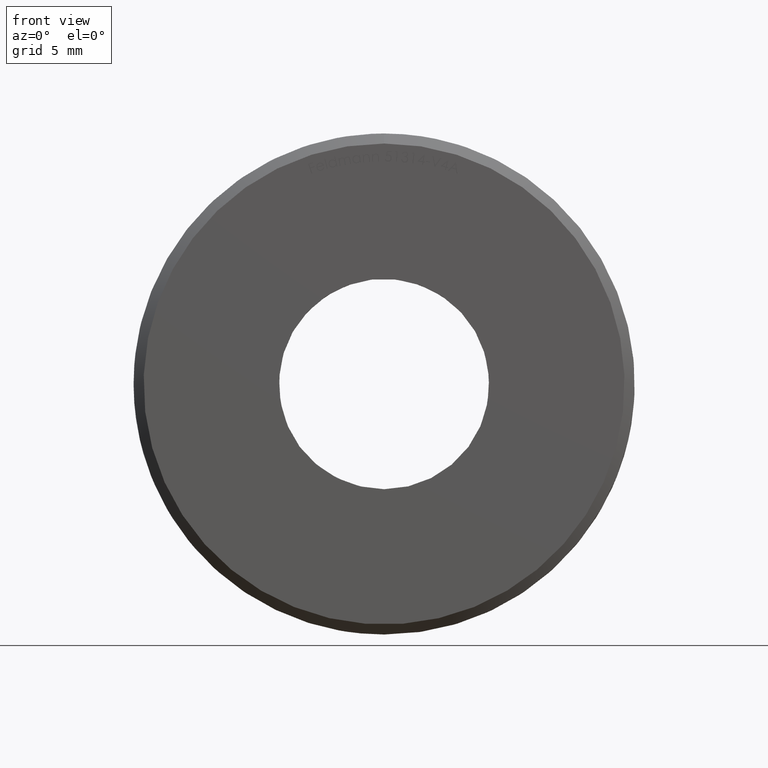
[diagram: clean part render]
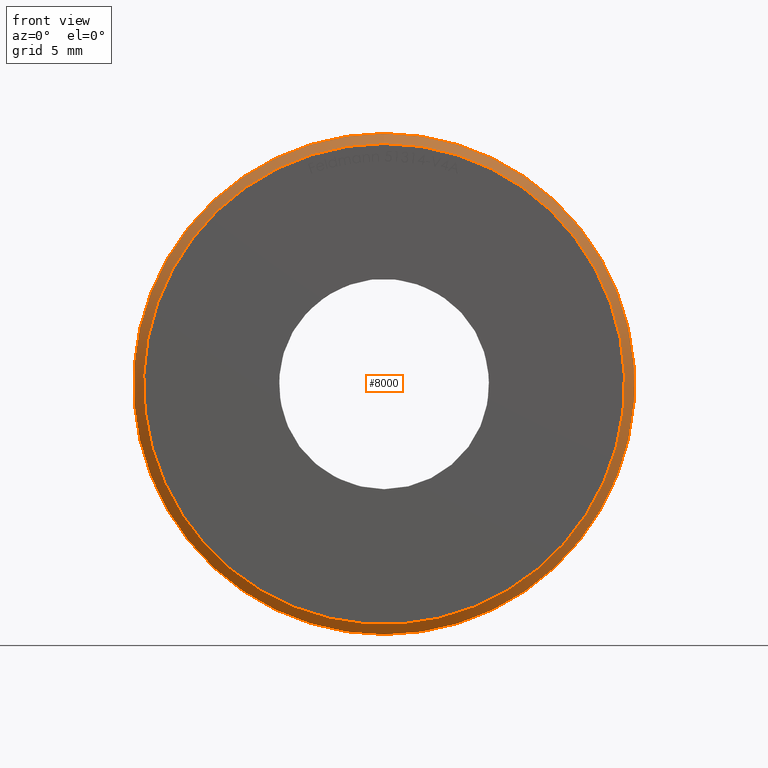
[diagram: same view with one face highlighted and labeled with its STEP entity id]
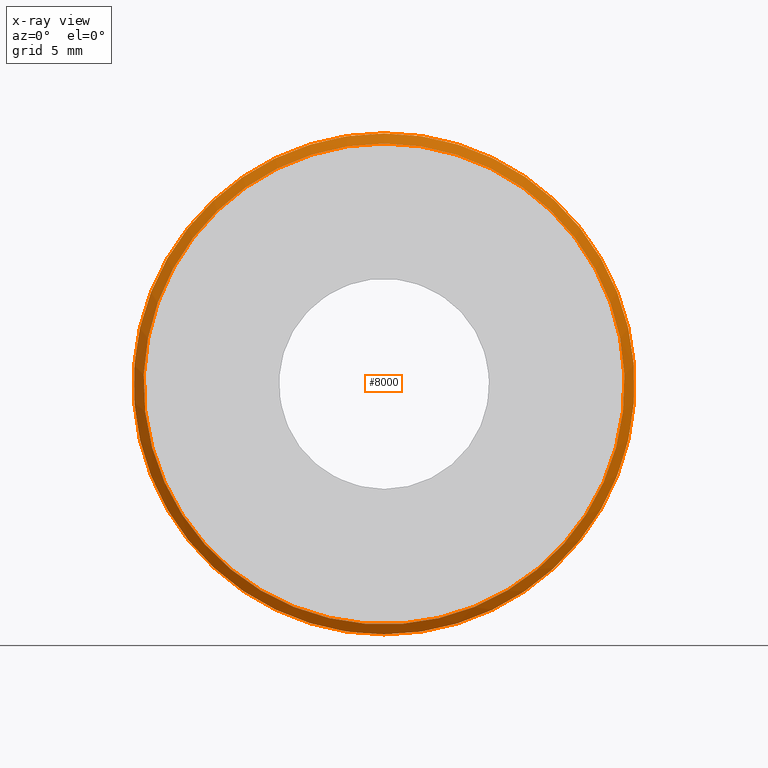
[diagram: x-ray of the same camera — body ghosted, the highlighted face saturated]
A machine part, front view. The second image highlights one B-rep face of the part: STEP entity #8000.
The next image is the same camera in x-ray: the body ghosted, the highlighted face saturated — about 0% of this face is hidden behind the body in this view.
In plain terms, the highlighted conical surface has half-angle 45 deg.
Its self-contained STEP definition (entity closure, byte-faithful):
#161 = EDGE_LOOP ( 'NONE', ( #9944 ) ) ;
#223 = EDGE_CURVE ( 'NONE', #4415, #4415, #10344, .T. ) ;
#290 = DIRECTION ( 'NONE',  ( 0.000000000000000000, 0.000000000000000000, 1.000000000000000000 ) ) ;
#1904 = CARTESIAN_POINT ( 'NONE',  ( 0.000000000000000000, 0.5000000000000056621, 0.000000000000000000 ) ) ;
#3135 = CIRCLE ( 'NONE', #6348, 12.50000000000000000 ) ;
#3415 = DIRECTION ( 'NONE',  ( 0.000000000000000000, 0.000000000000000000, 1.000000000000000000 ) ) ;
#3769 = EDGE_LOOP ( 'NONE', ( #4833 ) ) ;
#4298 = DIRECTION ( 'NONE',  ( 0.000000000000000000, 0.000000000000000000, 1.000000000000000000 ) ) ;
#4323 = FACE_OUTER_BOUND ( 'NONE', #3769, .T. ) ;
#4415 = VERTEX_POINT ( 'NONE', #9707 ) ;
#4833 = ORIENTED_EDGE ( 'NONE', *, *, #5173, .F. ) ;
#5172 = CONICAL_SURFACE ( 'NONE', #7977, 12.50000000000000000, 0.7853981633974500554 ) ;
#5173 = EDGE_CURVE ( 'NONE', #9680, #9680, #3135, .T. ) ;
#5942 = FACE_BOUND ( 'NONE', #161, .T. ) ;
#6348 = AXIS2_PLACEMENT_3D ( 'NONE', #10059, #8333, #290 ) ;
#7300 = CARTESIAN_POINT ( 'NONE',  ( 0.000000000000000000, 0.5000000000000056621, 12.50000000000000000 ) ) ;
#7526 = CARTESIAN_POINT ( 'NONE',  ( 0.000000000000000000, 0.000000000000000000, 0.000000000000000000 ) ) ;
#7977 = AXIS2_PLACEMENT_3D ( 'NONE', #1904, #8316, #4298 ) ;
#8000 = ADVANCED_FACE ( 'NONE', ( #5942, #4323 ), #5172, .T. ) ;
#8304 = DIRECTION ( 'NONE',  ( -0.000000000000000000, -1.000000000000000000, -0.000000000000000000 ) ) ;
#8316 = DIRECTION ( 'NONE',  ( -0.000000000000000000, 1.000000000000000000, -0.000000000000000000 ) ) ;
#8333 = DIRECTION ( 'NONE',  ( -0.000000000000000000, 1.000000000000000000, -0.000000000000000000 ) ) ;
#9066 = AXIS2_PLACEMENT_3D ( 'NONE', #7526, #8304, #3415 ) ;
#9680 = VERTEX_POINT ( 'NONE', #7300 ) ;
#9707 = CARTESIAN_POINT ( 'NONE',  ( 0.000000000000000000, 0.000000000000000000, 11.99999999999999289 ) ) ;
#9944 = ORIENTED_EDGE ( 'NONE', *, *, #223, .F. ) ;
#10059 = CARTESIAN_POINT ( 'NONE',  ( 0.000000000000000000, 0.5000000000000056621, 0.000000000000000000 ) ) ;
#10344 = CIRCLE ( 'NONE', #9066, 11.99999999999999289 ) ;